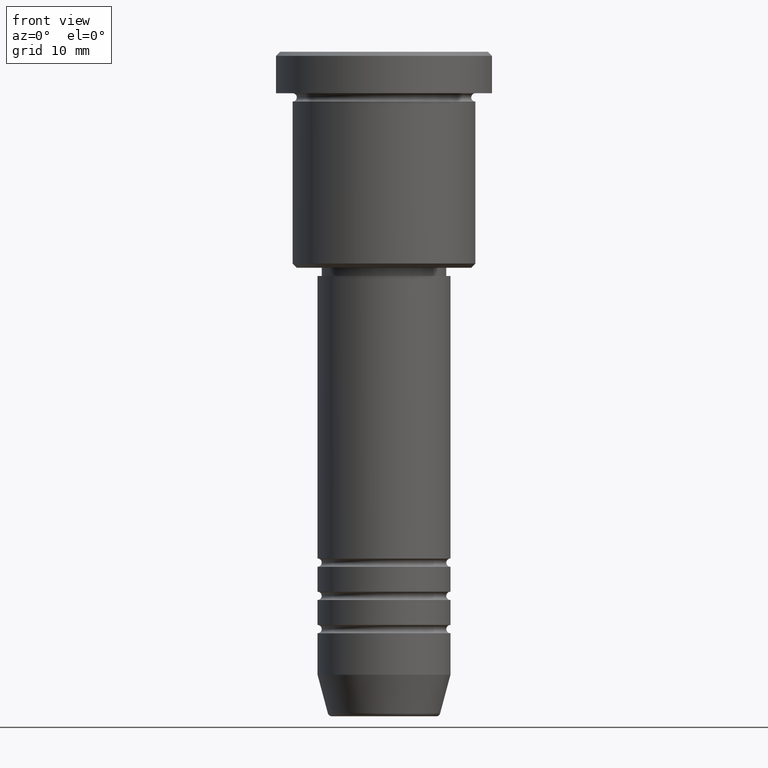
[diagram: clean part render]
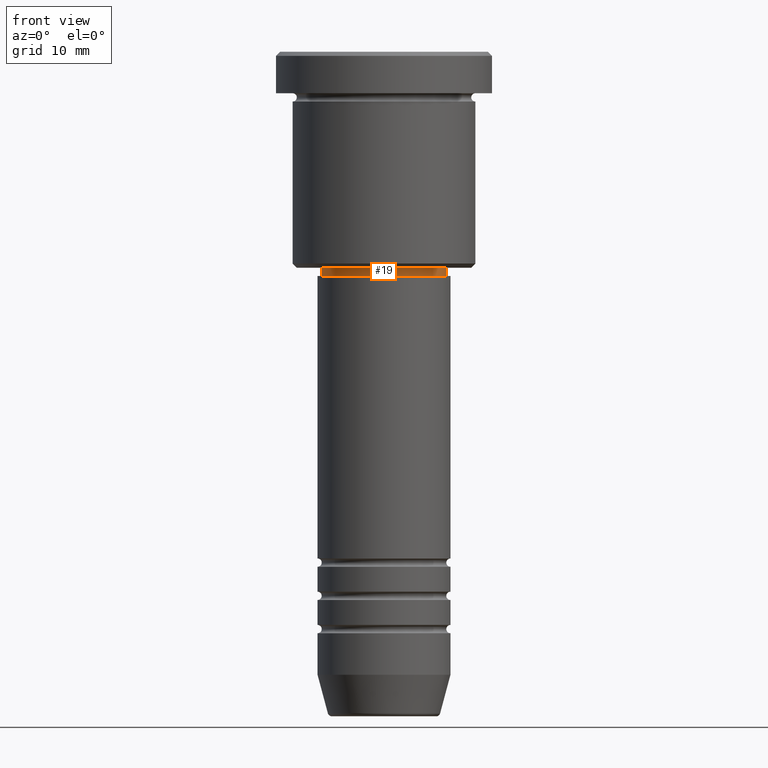
[diagram: same view with one face highlighted and labeled with its STEP entity id]
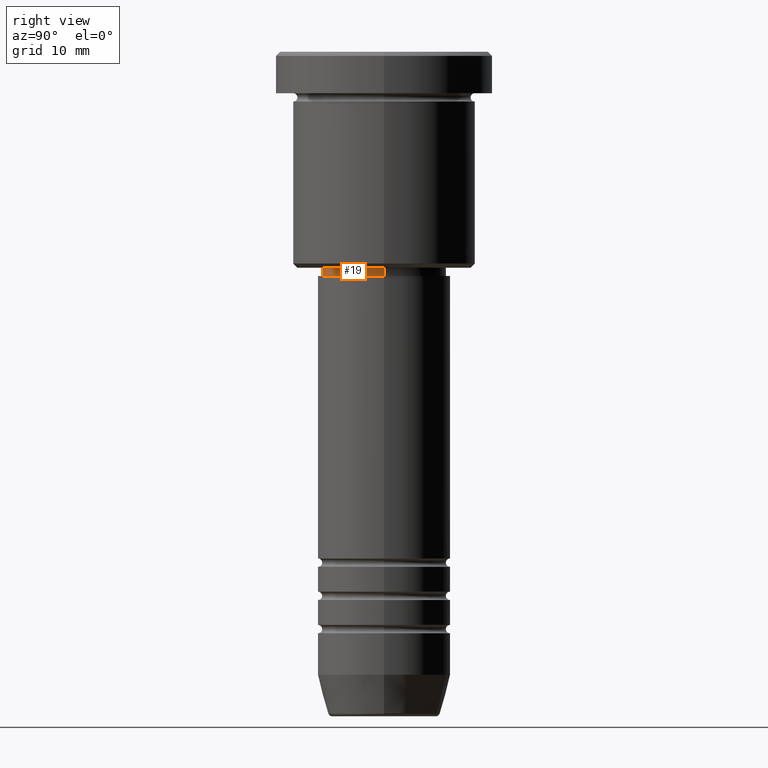
[diagram: same view with one face highlighted and labeled with its STEP entity id]
A machine part, front view. The second image highlights one B-rep face of the part: STEP entity #19.
A second angle (right view) of the same face is appended — the face is thin or edge-on in the first view.
In plain terms, the highlighted cylindrical surface (partial cylindrical patch) has radius 7.5 mm, axis along (-0, -0, 1).
Its self-contained STEP definition (entity closure, byte-faithful):
#8 = DIRECTION ( 'NONE',  ( 1.000000000000000000, 0.000000000000000000, 0.000000000000000000 ) ) ;
#9 = VERTEX_POINT ( 'NONE', #611 ) ;
#19 = ADVANCED_FACE ( 'NONE', ( #55 ), #48, .T. ) ;
#41 = VERTEX_POINT ( 'NONE', #225 ) ;
#48 = CYLINDRICAL_SURFACE ( 'NONE', #1061, 7.500000000000000000 ) ;
#55 = FACE_OUTER_BOUND ( 'NONE', #520, .T. ) ;
#83 = CARTESIAN_POINT ( 'NONE',  ( 7.500000000000000000, 0.000000000000000000, 0.000000000000000000 ) ) ;
#145 = EDGE_CURVE ( 'NONE', #9, #797, #189, .T. ) ;
#156 = DIRECTION ( 'NONE',  ( 1.000000000000000000, 0.000000000000000000, 0.000000000000000000 ) ) ;
#189 = LINE ( 'NONE', #739, #819 ) ;
#202 = ORIENTED_EDGE ( 'NONE', *, *, #876, .F. ) ;
#225 = CARTESIAN_POINT ( 'NONE',  ( 7.500000000000000000, 0.000000000000000000, -27.00000000000000355 ) ) ;
#243 = ORIENTED_EDGE ( 'NONE', *, *, #313, .T. ) ;
#304 = CARTESIAN_POINT ( 'NONE',  ( 0.000000000000000000, 0.000000000000000000, 0.000000000000000000 ) ) ;
#313 = EDGE_CURVE ( 'NONE', #9, #41, #522, .T. ) ;
#345 = DIRECTION ( 'NONE',  ( -0.000000000000000000, -0.000000000000000000, 1.000000000000000000 ) ) ;
#501 = ORIENTED_EDGE ( 'NONE', *, *, #956, .T. ) ;
#520 = EDGE_LOOP ( 'NONE', ( #1082, #243, #501, #202 ) ) ;
#522 = CIRCLE ( 'NONE', #741, 7.500000000000000000 ) ;
#533 = DIRECTION ( 'NONE',  ( -0.000000000000000000, -0.000000000000000000, 1.000000000000000000 ) ) ;
#535 = CARTESIAN_POINT ( 'NONE',  ( 0.000000000000000000, 0.000000000000000000, -27.00000000000000355 ) ) ;
#611 = CARTESIAN_POINT ( 'NONE',  ( -7.500000000000000000, 9.184850993605147944E-16, -27.00000000000000355 ) ) ;
#656 = VECTOR ( 'NONE', #533, 1000.000000000000000 ) ;
#710 = AXIS2_PLACEMENT_3D ( 'NONE', #1058, #345, #156 ) ;
#739 = CARTESIAN_POINT ( 'NONE',  ( -7.500000000000000000, 9.184850993605147944E-16, 0.000000000000000000 ) ) ;
#741 = AXIS2_PLACEMENT_3D ( 'NONE', #535, #817, #8 ) ;
#797 = VERTEX_POINT ( 'NONE', #1144 ) ;
#807 = CIRCLE ( 'NONE', #710, 7.500000000000000000 ) ;
#817 = DIRECTION ( 'NONE',  ( -0.000000000000000000, -0.000000000000000000, 1.000000000000000000 ) ) ;
#819 = VECTOR ( 'NONE', #936, 1000.000000000000000 ) ;
#876 = EDGE_CURVE ( 'NONE', #797, #1113, #807, .T. ) ;
#893 = LINE ( 'NONE', #83, #656 ) ;
#936 = DIRECTION ( 'NONE',  ( -0.000000000000000000, -0.000000000000000000, 1.000000000000000000 ) ) ;
#956 = EDGE_CURVE ( 'NONE', #41, #1113, #893, .T. ) ;
#966 = DIRECTION ( 'NONE',  ( -0.000000000000000000, -0.000000000000000000, 1.000000000000000000 ) ) ;
#1058 = CARTESIAN_POINT ( 'NONE',  ( 0.000000000000000000, 0.000000000000000000, -26.00000000000000000 ) ) ;
#1061 = AXIS2_PLACEMENT_3D ( 'NONE', #304, #966, #1067 ) ;
#1067 = DIRECTION ( 'NONE',  ( 1.000000000000000000, 0.000000000000000000, 0.000000000000000000 ) ) ;
#1082 = ORIENTED_EDGE ( 'NONE', *, *, #145, .F. ) ;
#1087 = CARTESIAN_POINT ( 'NONE',  ( 7.500000000000000000, 0.000000000000000000, -26.00000000000000000 ) ) ;
#1113 = VERTEX_POINT ( 'NONE', #1087 ) ;
#1144 = CARTESIAN_POINT ( 'NONE',  ( -7.500000000000000000, 9.184850993605147944E-16, -26.00000000000000000 ) ) ;